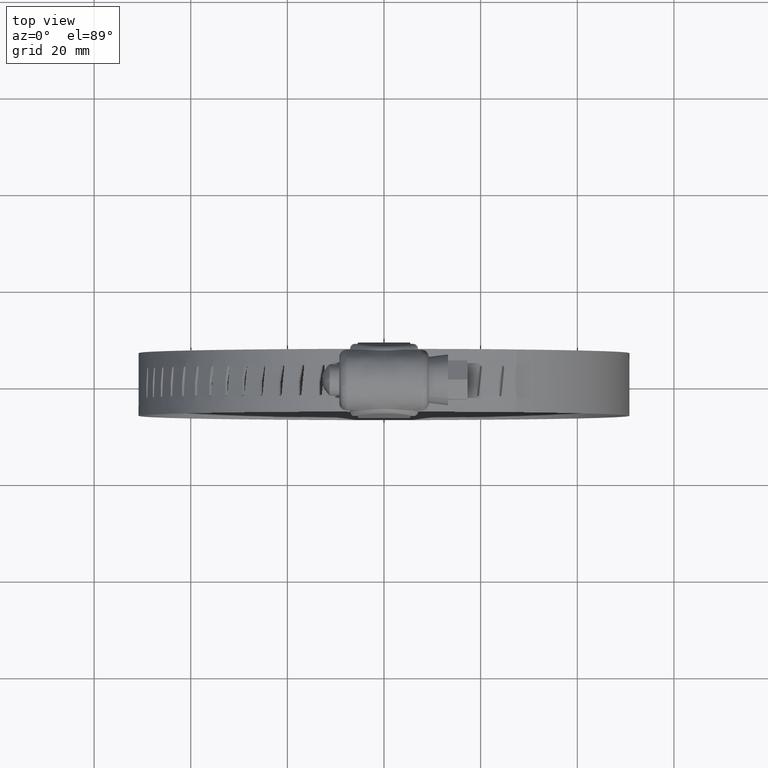
[diagram: clean part render]
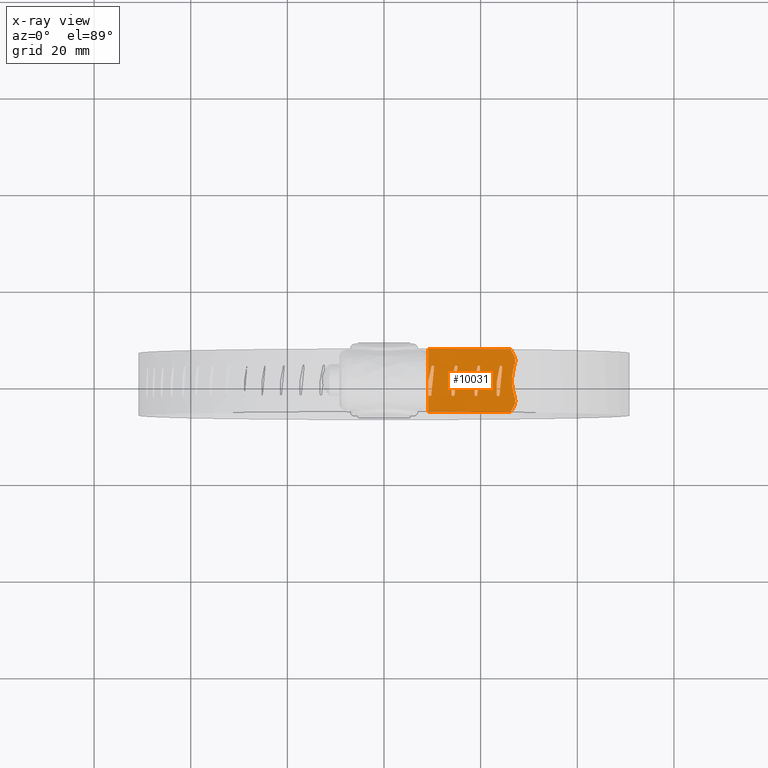
[diagram: x-ray — body ghosted, one internal face saturated and labeled with its STEP entity id]
A machine part, top view, then the same camera in x-ray: the body is ghosted and one INTERNAL B-rep face — a face not visible from any outside direction — is saturated and labeled: STEP entity #10031.
In plain terms, the highlighted face is a freeform B-spline surface patch.
Its self-contained STEP definition (entity closure, byte-faithful):
#8351=CARTESIAN_POINT('',(27.101650471723350,3.681800700683570,4.592234060521960));
#8352=VERTEX_POINT('',#8351);
#8358=CARTESIAN_POINT('',(26.906063021759799,5.226117512659190,4.689944447529220));
#8359=VERTEX_POINT('',#8358);
#8360=CARTESIAN_POINT('',(26.906063021759799,5.226117512659190,4.689944447529220));
#8361=CARTESIAN_POINT('',(27.021995742131448,5.011836430352624,4.631909496277211));
#8362=CARTESIAN_POINT('',(27.190433633565330,4.501733961130943,4.547624347147446));
#8363=CARTESIAN_POINT('',(27.167670906577911,3.955883228999682,4.559118120575854));
#8364=CARTESIAN_POINT('',(27.101650471723350,3.681800700683570,4.592234060521960));
#8365=B_SPLINE_CURVE_WITH_KNOTS('',3,(#8360,#8361,#8362,#8363,#8364),.UNSPECIFIED.,.F.,.U.,(4,1,4),(0.000000056296597,0.751276181587862,1.602694792512136),.UNSPECIFIED.);
#8366=EDGE_CURVE('',#8359,#8352,#8365,.T.);
#8403=CARTESIAN_POINT('',(26.906063021760051,-5.226117512658490,4.689944447529090));
#8404=VERTEX_POINT('',#8403);
#8410=CARTESIAN_POINT('',(27.101650471723499,-3.681800700682835,4.592234060521911));
#8411=VERTEX_POINT('',#8410);
#8412=CARTESIAN_POINT('',(27.101650471723499,-3.681800700682835,4.592234060521911));
#8413=CARTESIAN_POINT('',(27.167699407794512,-3.955885194933892,4.559208925948240));
#8414=CARTESIAN_POINT('',(27.190479838552520,-4.501729491435843,4.547802138133265));
#8415=CARTESIAN_POINT('',(27.022020524598521,-5.011828992731032,4.631989710062126));
#8416=CARTESIAN_POINT('',(26.906063021760051,-5.226117512658490,4.689944447529090));
#8417=B_SPLINE_CURVE_WITH_KNOTS('',3,(#8412,#8413,#8414,#8415,#8416),.UNSPECIFIED.,.F.,.U.,(4,1,4),(0.000000056260240,0.851411270212592,1.602680860971218),.UNSPECIFIED.);
#8418=EDGE_CURVE('',#8411,#8404,#8417,.T.);
#8454=CARTESIAN_POINT('',(26.712574706738650,-2.061301204482190,4.785672459038110));
#8455=VERTEX_POINT('',#8454);
#8461=CARTESIAN_POINT('',(26.712574706738600,2.061301204483115,4.785672459038150));
#8462=VERTEX_POINT('',#8461);
#8463=CARTESIAN_POINT('',(26.712574706738600,2.061301204483115,4.785672459038150));
#8464=CARTESIAN_POINT('',(26.555668433617811,1.411020043247488,4.862477899466092));
#8465=CARTESIAN_POINT('',(26.386313566310811,0.022471775716949,4.945376912446569));
#8466=CARTESIAN_POINT('',(26.545516489706230,-1.369086206580985,4.867447264347514));
#8467=CARTESIAN_POINT('',(26.712574706738650,-2.061301204482190,4.785672459038110));
#8468=B_SPLINE_CURVE_WITH_KNOTS('',3,(#8463,#8464,#8465,#8466,#8467),.UNSPECIFIED.,.F.,.U.,(4,1,4),(0.000000010733812,2.019969265582713,4.170229262031755),.UNSPECIFIED.);
#8469=EDGE_CURVE('',#8462,#8455,#8468,.T.);
#8484=CARTESIAN_POINT('',(9.206269885864650,-0.072243000000128,10.084415670138741));
#8485=VERTEX_POINT('',#8484);
#8500=CARTESIAN_POINT('',(9.176783059720750,-0.367213000000106,10.088271918570980));
#8501=VERTEX_POINT('',#8500);
#8507=CARTESIAN_POINT('',(9.206269885864650,-0.072243000000128,10.084415670138741));
#8508=CARTESIAN_POINT('',(9.176783059720750,-0.367213000000106,10.088271918570980));
#8509=QUASI_UNIFORM_CURVE('',1,(#8507,#8508),.UNSPECIFIED.,.F.,.U.);
#8510=EDGE_CURVE('',#8485,#8501,#8509,.T.);
#8520=CARTESIAN_POINT('',(9.779901879342411,2.773310999999865,10.006232187423141));
#8521=VERTEX_POINT('',#8520);
#8535=CARTESIAN_POINT('',(9.779901879342411,2.773310999999865,10.006232187423141));
#8536=CARTESIAN_POINT('',(9.206269885864650,-0.072243000000128,10.084415670138741));
#8537=QUASI_UNIFORM_CURVE('',1,(#8535,#8536),.UNSPECIFIED.,.F.,.U.);
#8538=EDGE_CURVE('',#8521,#8485,#8537,.T.);
#8561=CARTESIAN_POINT('',(10.381021097644521,2.773310999999865,9.917823409135901));
#8562=VERTEX_POINT('',#8561);
#8592=CARTESIAN_POINT('',(10.080624855939410,3.073310986949679,9.962834450419376));
#8593=VERTEX_POINT('',#8592);
#8594=CARTESIAN_POINT('',(10.080624855939410,3.073310986949679,9.962834450419376));
#8595=CARTESIAN_POINT('',(10.036709652591339,3.073361098476564,9.969293344227825));
#8596=CARTESIAN_POINT('',(9.939106671027210,3.051418682991618,9.983587388833261));
#8597=CARTESIAN_POINT('',(9.815914092076683,2.945331969422397,10.001412015468640));
#8598=CARTESIAN_POINT('',(9.780486168761890,2.832534753090935,10.006310223235280));
#8599=CARTESIAN_POINT('',(9.779901879342411,2.773310999999865,10.006232187423141));
#8600=B_SPLINE_CURVE_WITH_KNOTS('',3,(#8594,#8595,#8596,#8597,#8598,#8599),.UNSPECIFIED.,.F.,.U.,(4,1,1,4),(0.000000513687570,0.133180281469811,0.295921767765534,0.473511379996135),.UNSPECIFIED.);
#8601=EDGE_CURVE('',#8593,#8521,#8600,.T.);
#8603=CARTESIAN_POINT('',(10.381021097644521,2.773310999999865,9.917823409135901));
#8604=CARTESIAN_POINT('',(10.380529012120730,2.817682959370854,9.918018632034986));
#8605=CARTESIAN_POINT('',(10.357637154244070,2.916044203403652,9.921657753876026));
#8606=CARTESIAN_POINT('',(10.251189628657601,3.039094111502975,9.937654088386179));
#8607=CARTESIAN_POINT('',(10.139219986236030,3.073508602685603,9.954217182691739));
#8608=CARTESIAN_POINT('',(10.080624855939410,3.073310986949679,9.962834450419376));
#8609=B_SPLINE_CURVE_WITH_KNOTS('',3,(#8603,#8604,#8605,#8606,#8607,#8608),.UNSPECIFIED.,.F.,.U.,(4,1,1,4),(0.000000506866927,0.133155379152713,0.295866448802109,0.473422844281244),.UNSPECIFIED.);
#8610=EDGE_CURVE('',#8562,#8593,#8609,.T.);
#8620=CARTESIAN_POINT('',(9.779901879342079,-2.926689000000125,10.006232187422579));
#8621=VERTEX_POINT('',#8620);
#8635=CARTESIAN_POINT('',(9.779901879342079,-2.926689000000125,10.006232187422579));
#8636=CARTESIAN_POINT('',(10.381021097644521,2.773310999999865,9.917823409135901));
#8637=QUASI_UNIFORM_CURVE('',1,(#8635,#8636),.UNSPECIFIED.,.F.,.U.);
#8638=EDGE_CURVE('',#8621,#8562,#8637,.T.);
#8661=CARTESIAN_POINT('',(9.176783059720689,-2.926689000000125,10.088271918571239));
#8662=VERTEX_POINT('',#8661);
#8691=CARTESIAN_POINT('',(9.478498550864295,-3.226688984526933,10.048063199700341));
#8692=VERTEX_POINT('',#8691);
#8693=CARTESIAN_POINT('',(9.478498550864295,-3.226688984526933,10.048063199700341));
#8694=CARTESIAN_POINT('',(9.547054172919536,-3.227025125029273,10.038738774696530));
#8695=CARTESIAN_POINT('',(9.658976496681614,-3.186365406917556,10.023401611050490));
#8696=CARTESIAN_POINT('',(9.758475875607719,-3.059566196230893,10.009515319737840));
#8697=CARTESIAN_POINT('',(9.779347110763789,-2.971101336826104,10.006430861680579));
#8698=CARTESIAN_POINT('',(9.779901879342079,-2.926689000000125,10.006232187422579));
#8699=B_SPLINE_CURVE_WITH_KNOTS('',3,(#8693,#8694,#8695,#8696,#8697,#8698),.UNSPECIFIED.,.F.,.U.,(4,1,1,4),(0.000000525822244,0.207288957500838,0.340499169453135,0.473744511497274),.UNSPECIFIED.);
#8700=EDGE_CURVE('',#8692,#8621,#8699,.T.);
#8702=CARTESIAN_POINT('',(9.176783059720689,-2.926689000000125,10.088271918571239));
#8703=CARTESIAN_POINT('',(9.177266630922322,-2.961231789827622,10.088301971118170));
#8704=CARTESIAN_POINT('',(9.190972630654327,-3.035071754511354,10.086642456860339));
#8705=CARTESIAN_POINT('',(9.256012666027928,-3.142371543333490,10.078093031685100));
#8706=CARTESIAN_POINT('',(9.361108515636834,-3.212355528543324,10.063991471384419));
#8707=CARTESIAN_POINT('',(9.444275088002570,-3.226703557711063,10.052718503231940));
#8708=CARTESIAN_POINT('',(9.478498550864295,-3.226688984526933,10.048063199700341));
#8709=B_SPLINE_CURVE_WITH_KNOTS('',3,(#8702,#8703,#8704,#8705,#8706,#8707,#8708),.UNSPECIFIED.,.F.,.U.,(4,1,1,1,4),(0.000000491145290,0.103647017862877,0.222146785011251,0.370188705478791,0.473835199405190),.UNSPECIFIED.);
#8710=EDGE_CURVE('',#8662,#8692,#8709,.T.);
#8727=CARTESIAN_POINT('',(9.176783059720750,-0.367213000000106,10.088271918570980));
#8728=CARTESIAN_POINT('',(9.176783059720689,-2.926689000000125,10.088271918571239));
#8729=QUASI_UNIFORM_CURVE('',1,(#8727,#8728),.UNSPECIFIED.,.F.,.U.);
#8730=EDGE_CURVE('',#8501,#8662,#8729,.T.);
#8740=CARTESIAN_POINT('',(14.030726319292519,-0.072243000000128,9.236689379712781));
#8741=VERTEX_POINT('',#8740);
#8756=CARTESIAN_POINT('',(14.001687793620700,-0.367213000000106,9.243100900189539));
#8757=VERTEX_POINT('',#8756);
#8763=CARTESIAN_POINT('',(14.030726319292519,-0.072243000000128,9.236689379712781));
#8764=CARTESIAN_POINT('',(14.001687793620700,-0.367213000000106,9.243100900189539));
#8765=QUASI_UNIFORM_CURVE('',1,(#8763,#8764),.UNSPECIFIED.,.F.,.U.);
#8766=EDGE_CURVE('',#8741,#8757,#8765,.T.);
#8776=CARTESIAN_POINT('',(14.595361330343939,2.773310999999865,9.108808086297438));
#8777=VERTEX_POINT('',#8776);
#8791=CARTESIAN_POINT('',(14.595361330343939,2.773310999999865,9.108808086297438));
#8792=CARTESIAN_POINT('',(14.030726319292519,-0.072243000000128,9.236689379712781));
#8793=QUASI_UNIFORM_CURVE('',1,(#8791,#8792),.UNSPECIFIED.,.F.,.U.);
#8794=EDGE_CURVE('',#8777,#8741,#8793,.T.);
#8817=CARTESIAN_POINT('',(15.186487775800749,2.773310999999865,8.968344738152210));
#8818=VERTEX_POINT('',#8817);
#8847=CARTESIAN_POINT('',(14.891157603222400,3.073310986949679,9.039365756398837));
#8848=VERTEX_POINT('',#8847);
#8849=CARTESIAN_POINT('',(14.891157603222400,3.073310986949679,9.039365756398837));
#8850=CARTESIAN_POINT('',(14.833526236241170,3.073527166117949,9.053060701638257));
#8851=CARTESIAN_POINT('',(14.723350213299600,3.039130727545643,9.079143831934594));
#8852=CARTESIAN_POINT('',(14.618516663623421,2.916067767633483,9.103707850967275));
#8853=CARTESIAN_POINT('',(14.595886611406680,2.817693747504934,9.108808226320416));
#8854=CARTESIAN_POINT('',(14.595361330343939,2.773310999999865,9.108808086297438));
#8855=B_SPLINE_CURVE_WITH_KNOTS('',3,(#8849,#8850,#8851,#8852,#8853,#8854),.UNSPECIFIED.,.F.,.U.,(4,1,1,4),(0.000000513687195,0.177590120615601,0.340331606139079,0.473511379996323),.UNSPECIFIED.);
#8856=EDGE_CURVE('',#8848,#8777,#8855,.T.);
#8858=CARTESIAN_POINT('',(15.186487775800749,2.773310999999865,8.968344738152210));
#8859=CARTESIAN_POINT('',(15.186007397013000,2.832536540722316,8.968625631904290));
#8860=CARTESIAN_POINT('',(15.151211962314690,2.945274227093271,8.977211133085209));
#8861=CARTESIAN_POINT('',(15.030296764465509,3.051405655788178,9.006241821587738));
#8862=CARTESIAN_POINT('',(14.934328537103321,3.073342521975173,9.029107563494211));
#8863=CARTESIAN_POINT('',(14.891157603222400,3.073310986949679,9.039365756398837));
#8864=B_SPLINE_CURVE_WITH_KNOTS('',3,(#8858,#8859,#8860,#8861,#8862,#8863),.UNSPECIFIED.,.F.,.U.,(4,1,1,4),(0.000000506866710,0.177556907647622,0.340267978068836,0.473422844281150),.UNSPECIFIED.);
#8865=EDGE_CURVE('',#8818,#8848,#8864,.T.);
#8875=CARTESIAN_POINT('',(14.595361330344000,-2.926689000000125,9.108808086297881));
#8876=VERTEX_POINT('',#8875);
#8890=CARTESIAN_POINT('',(14.595361330344000,-2.926689000000125,9.108808086297881));
#8891=CARTESIAN_POINT('',(15.186487775800749,2.773310999999865,8.968344738152210));
#8892=QUASI_UNIFORM_CURVE('',1,(#8890,#8891),.UNSPECIFIED.,.F.,.U.);
#8893=EDGE_CURVE('',#8876,#8818,#8892,.T.);
#8916=CARTESIAN_POINT('',(14.001687793620480,-2.926689000000125,9.243100900189361));
#8917=VERTEX_POINT('',#8916);
#8946=CARTESIAN_POINT('',(14.298750745472040,-3.226688984526934,9.176748949904242));
#8947=VERTEX_POINT('',#8946);
#8948=CARTESIAN_POINT('',(14.298750745472040,-3.226688984526934,9.176748949904242));
#8949=CARTESIAN_POINT('',(14.342053412636680,-3.226720966708398,9.166953680238187));
#8950=CARTESIAN_POINT('',(14.443186108138860,-3.203731994558533,9.144011980061773));
#8951=CARTESIAN_POINT('',(14.562802827916951,-3.093964609328333,9.116644491197846));
#8952=CARTESIAN_POINT('',(14.594743341886319,-2.980969378852175,9.109100863061276));
#8953=CARTESIAN_POINT('',(14.595361330344000,-2.926689000000125,9.108808086297881));
#8954=B_SPLINE_CURVE_WITH_KNOTS('',3,(#8948,#8949,#8950,#8951,#8952,#8953),.UNSPECIFIED.,.F.,.U.,(4,1,1,4),(0.000000525822434,0.133245834177689,0.310887342909519,0.473744511497228),.UNSPECIFIED.);
#8955=EDGE_CURVE('',#8947,#8876,#8954,.T.);
#8957=CARTESIAN_POINT('',(14.001687793620480,-2.926689000000125,9.243100900189361));
#8958=CARTESIAN_POINT('',(14.002345868959081,-2.985963789641857,9.243119099230400));
#8959=CARTESIAN_POINT('',(14.037554901339099,-3.098740762104695,9.235472449329519));
#8960=CARTESIAN_POINT('',(14.159104945881049,-3.204834954691402,9.208276096216187));
#8961=CARTESIAN_POINT('',(14.255434533372069,-3.226738259944703,9.186547482631969));
#8962=CARTESIAN_POINT('',(14.298750745472040,-3.226688984526934,9.176748949904242));
#8963=B_SPLINE_CURVE_WITH_KNOTS('',3,(#8957,#8958,#8959,#8960,#8961,#8962),.UNSPECIFIED.,.F.,.U.,(4,1,1,4),(0.000000491145143,0.177711521890383,0.340564372445821,0.473835199405368),.UNSPECIFIED.);
#8964=EDGE_CURVE('',#8917,#8947,#8963,.T.);
#8981=CARTESIAN_POINT('',(14.001687793620700,-0.367213000000106,9.243100900189539));
#8982=CARTESIAN_POINT('',(14.001687793620480,-2.926689000000125,9.243100900189361));
#8983=QUASI_UNIFORM_CURVE('',1,(#8981,#8982),.UNSPECIFIED.,.F.,.U.);
#8984=EDGE_CURVE('',#8757,#8917,#8983,.T.);
#8994=CARTESIAN_POINT('',(18.762940024959050,-0.072243000000128,7.971709859948219));
#8995=VERTEX_POINT('',#8994);
#9010=CARTESIAN_POINT('',(18.734570800473652,-0.367213000000106,7.980627856926990));
#9011=VERTEX_POINT('',#9010);
#9017=CARTESIAN_POINT('',(18.762940024959050,-0.072243000000128,7.971709859948219));
#9018=CARTESIAN_POINT('',(18.734570800473652,-0.367213000000106,7.980627856926990));
#9019=QUASI_UNIFORM_CURVE('',1,(#9017,#9018),.UNSPECIFIED.,.F.,.U.);
#9020=EDGE_CURVE('',#8995,#9011,#9019,.T.);
#9030=CARTESIAN_POINT('',(19.314280840214352,2.773310999999865,7.795104009693300));
#9031=VERTEX_POINT('',#9030);
#9045=CARTESIAN_POINT('',(19.314280840214352,2.773310999999865,7.795104009693300));
#9046=CARTESIAN_POINT('',(18.762940024959050,-0.072243000000128,7.971709859948219));
#9047=QUASI_UNIFORM_CURVE('',1,(#9045,#9046),.UNSPECIFIED.,.F.,.U.);
#9048=EDGE_CURVE('',#9031,#8995,#9047,.T.);
#9071=CARTESIAN_POINT('',(19.890915683643751,2.773310999999865,7.603655102583210));
#9072=VERTEX_POINT('',#9071);
#9101=CARTESIAN_POINT('',(19.602899221130262,3.073310986949679,7.700145584960667));
#9102=VERTEX_POINT('',#9101);
#9103=CARTESIAN_POINT('',(19.602899221130262,3.073310986949679,7.700145584960667));
#9104=CARTESIAN_POINT('',(19.546689971907970,3.073496305609096,7.718808171227427));
#9105=CARTESIAN_POINT('',(19.439184478169519,3.039171603507037,7.754402037839661));
#9106=CARTESIAN_POINT('',(19.336909246657029,2.916049519841510,7.788003116571760));
#9107=CARTESIAN_POINT('',(19.314803155997762,2.817696569958849,7.795058700983730));
#9108=CARTESIAN_POINT('',(19.314280840214352,2.773310999999865,7.795104009693300));
#9109=B_SPLINE_CURVE_WITH_KNOTS('',3,(#9103,#9104,#9105,#9106,#9107,#9108),.UNSPECIFIED.,.F.,.U.,(4,1,1,4),(0.000000513687415,0.177590120615564,0.340331606138796,0.473511379995833),.UNSPECIFIED.);
#9110=EDGE_CURVE('',#9102,#9031,#9109,.T.);
#9112=CARTESIAN_POINT('',(19.890915683643751,2.773310999999865,7.603655102583210));
#9113=CARTESIAN_POINT('',(19.890471682912690,2.832544811919626,7.603973476217555));
#9114=CARTESIAN_POINT('',(19.860920910867151,2.930498919719429,7.614067371462043));
#9115=CARTESIAN_POINT('',(19.752424264007900,3.043538510225358,7.650415702284014));
#9116=CARTESIAN_POINT('',(19.659112786631979,3.073501331335603,7.681482614343499));
#9117=CARTESIAN_POINT('',(19.602899221130262,3.073310986949679,7.700145584960667));
#9118=B_SPLINE_CURVE_WITH_KNOTS('',3,(#9112,#9113,#9114,#9115,#9116,#9117),.UNSPECIFIED.,.F.,.U.,(4,1,1,4),(0.000000506867461,0.177556907648156,0.295866448802449,0.473422844281623),.UNSPECIFIED.);
#9119=EDGE_CURVE('',#9072,#9102,#9118,.T.);
#9129=CARTESIAN_POINT('',(19.314280840214249,-2.926689000000125,7.795104009693300));
#9130=VERTEX_POINT('',#9129);
#9144=CARTESIAN_POINT('',(19.314280840214249,-2.926689000000125,7.795104009693300));
#9145=CARTESIAN_POINT('',(19.890915683643751,2.773310999999865,7.603655102583210));
#9146=QUASI_UNIFORM_CURVE('',1,(#9144,#9145),.UNSPECIFIED.,.F.,.U.);
#9147=EDGE_CURVE('',#9130,#9072,#9146,.T.);
#9170=CARTESIAN_POINT('',(18.734570800473549,-2.926689000000125,7.980627856927139));
#9171=VERTEX_POINT('',#9170);
#9201=CARTESIAN_POINT('',(19.024720384597689,-3.226688984526933,7.888637653633535));
#9202=VERTEX_POINT('',#9201);
#9203=CARTESIAN_POINT('',(19.024720384597689,-3.226688984526933,7.888637653633535));
#9204=CARTESIAN_POINT('',(19.067012838267871,-3.226725566358192,7.875102945167573));
#9205=CARTESIAN_POINT('',(19.161002046722619,-3.204795951956035,7.844960372404327));
#9206=CARTESIAN_POINT('',(19.279547263586402,-3.098717342925570,7.806716285725711));
#9207=CARTESIAN_POINT('',(19.313700230072861,-2.985946200563149,7.795460854786866));
#9208=CARTESIAN_POINT('',(19.314280840214249,-2.926689000000125,7.795104009693300));
#9209=B_SPLINE_CURVE_WITH_KNOTS('',3,(#9203,#9204,#9205,#9206,#9207,#9208),.UNSPECIFIED.,.F.,.U.,(4,1,1,4),(0.000000525822388,0.133245834177540,0.296067515128863,0.473744511497156),.UNSPECIFIED.);
#9210=EDGE_CURVE('',#9202,#9130,#9209,.T.);
#9212=CARTESIAN_POINT('',(18.734570800473549,-2.926689000000125,7.980627856927139));
#9213=CARTESIAN_POINT('',(18.735224965059061,-2.981004276138467,7.980575274878513));
#9214=CARTESIAN_POINT('',(18.763947091202670,-3.084079366826122,7.971680884426561));
#9215=CARTESIAN_POINT('',(18.874380607549028,-3.198277200414990,7.936668637388361));
#9216=CARTESIAN_POINT('',(18.972990623457640,-3.226825393010999,7.905193036542217));
#9217=CARTESIAN_POINT('',(19.024720384597689,-3.226688984526933,7.888637653633535));
#9218=B_SPLINE_CURVE_WITH_KNOTS('',3,(#9212,#9213,#9214,#9215,#9216,#9217),.UNSPECIFIED.,.F.,.U.,(4,1,1,4),(0.000000491145163,0.162888850518577,0.310946876457193,0.473835199405401),.UNSPECIFIED.);
#9219=EDGE_CURVE('',#9171,#9202,#9218,.T.);
#9236=CARTESIAN_POINT('',(18.734570800473652,-0.367213000000106,7.980627856926990));
#9237=CARTESIAN_POINT('',(18.734570800473549,-2.926689000000125,7.980627856927139));
#9238=QUASI_UNIFORM_CURVE('',1,(#9236,#9237),.UNSPECIFIED.,.F.,.U.);
#9239=EDGE_CURVE('',#9011,#9171,#9238,.T.);
#9249=CARTESIAN_POINT('',(26.215040247798299,-6.499999999999840,5.027599416484560));
#9250=VERTEX_POINT('',#9249);
#9251=CARTESIAN_POINT('',(26.215040247798299,-6.499999999999840,5.027599416484560));
#9252=CARTESIAN_POINT('',(26.906063021760051,-5.226117512658490,4.689944447529090));
#9253=QUASI_UNIFORM_CURVE('',1,(#9251,#9252),.UNSPECIFIED.,.F.,.U.);
#9254=EDGE_CURVE('',#9250,#8404,#9253,.T.);
#9285=CARTESIAN_POINT('',(26.215040247798299,6.500000000000170,5.027599416484560));
#9286=VERTEX_POINT('',#9285);
#9287=CARTESIAN_POINT('',(26.906063021759799,5.226117512659190,4.689944447529220));
#9288=CARTESIAN_POINT('',(26.215040247798299,6.500000000000170,5.027599416484560));
#9289=QUASI_UNIFORM_CURVE('',1,(#9287,#9288),.UNSPECIFIED.,.F.,.U.);
#9290=EDGE_CURVE('',#8359,#9286,#9289,.T.);
#9311=CARTESIAN_POINT('',(27.101650471723499,-3.681800700682835,4.592234060521911));
#9312=CARTESIAN_POINT('',(26.712574706738650,-2.061301204482190,4.785672459038110));
#9313=QUASI_UNIFORM_CURVE('',1,(#9311,#9312),.UNSPECIFIED.,.F.,.U.);
#9314=EDGE_CURVE('',#8411,#8455,#9313,.T.);
#9325=CARTESIAN_POINT('',(26.712574706738600,2.061301204483115,4.785672459038150));
#9326=CARTESIAN_POINT('',(27.101650471723350,3.681800700683570,4.592234060521960));
#9327=QUASI_UNIFORM_CURVE('',1,(#9325,#9326),.UNSPECIFIED.,.F.,.U.);
#9328=EDGE_CURVE('',#8462,#8352,#9327,.T.);
#9345=CARTESIAN_POINT('',(23.366895999175401,-0.072243000000128,6.299104368806210));
#9346=VERTEX_POINT('',#9345);
#9361=CARTESIAN_POINT('',(23.339411982804648,-0.367213000000106,6.310460970945230));
#9362=VERTEX_POINT('',#9361);
#9368=CARTESIAN_POINT('',(23.366895999175401,-0.072243000000128,6.299104368806210));
#9369=CARTESIAN_POINT('',(23.339411982804648,-0.367213000000106,6.310460970945230));
#9370=QUASI_UNIFORM_CURVE('',1,(#9368,#9369),.UNSPECIFIED.,.F.,.U.);
#9371=EDGE_CURVE('',#9346,#9362,#9370,.T.);
#9381=CARTESIAN_POINT('',(23.900746582121950,2.773310999999865,6.075118038869620));
#9382=VERTEX_POINT('',#9381);
#9396=CARTESIAN_POINT('',(23.900746582121950,2.773310999999865,6.075118038869620));
#9397=CARTESIAN_POINT('',(23.366895999175401,-0.072243000000128,6.299104368806210));
#9398=QUASI_UNIFORM_CURVE('',1,(#9396,#9397),.UNSPECIFIED.,.F.,.U.);
#9399=EDGE_CURVE('',#9382,#9346,#9398,.T.);
#9422=CARTESIAN_POINT('',(24.458501284183850,2.773310999999865,5.834140614577770));
#9423=VERTEX_POINT('',#9422);
#9453=CARTESIAN_POINT('',(24.179990510924469,3.073310986949680,5.955366210252466));
#9454=VERTEX_POINT('',#9453);
#9455=CARTESIAN_POINT('',(24.179990510924469,3.073310986949680,5.955366210252466));
#9456=CARTESIAN_POINT('',(24.125589625877421,3.073543763653407,5.978870740584029));
#9457=CARTESIAN_POINT('',(24.048856415131009,3.048042056665981,6.011947135854893));
#9458=CARTESIAN_POINT('',(23.961975596431468,2.967420954025994,6.049243322164200));
#9459=CARTESIAN_POINT('',(23.913798438627669,2.881657726049301,6.069802295623286));
#9460=CARTESIAN_POINT('',(23.901164919606629,2.807829312430604,6.075040295728579));
#9461=CARTESIAN_POINT('',(23.900746582121950,2.773310999999865,6.075118038869620));
#9462=B_SPLINE_CURVE_WITH_KNOTS('',3,(#9455,#9456,#9457,#9458,#9459,#9460,#9461),.UNSPECIFIED.,.F.,.U.,(4,1,1,1,4),(0.000000513687409,0.177590120615628,0.251516838189195,0.369935714705619,0.473511379995822),.UNSPECIFIED.);
#9463=EDGE_CURVE('',#9454,#9382,#9462,.T.);
#9465=CARTESIAN_POINT('',(24.458501284183850,2.773310999999865,5.834140614577770));
#9466=CARTESIAN_POINT('',(24.458091527085500,2.817694698123852,5.834450086286077));
#9467=CARTESIAN_POINT('',(24.438953826675789,2.906134758017734,5.842982415258864));
#9468=CARTESIAN_POINT('',(24.347045388579929,3.032954608088669,5.883069822824331));
#9469=CARTESIAN_POINT('',(24.243460078322681,3.073644457674944,5.927945213553988));
#9470=CARTESIAN_POINT('',(24.179990510924469,3.073310986949680,5.955366210252466));
#9471=B_SPLINE_CURVE_WITH_KNOTS('',3,(#9465,#9466,#9467,#9468,#9469,#9470),.UNSPECIFIED.,.F.,.U.,(4,1,1,4),(0.000000506867112,0.133155379152991,0.266275071986920,0.473422844281629),.UNSPECIFIED.);
#9472=EDGE_CURVE('',#9423,#9454,#9471,.T.);
#9482=CARTESIAN_POINT('',(23.900746582121851,-2.926689000000125,6.075118038869730));
#9483=VERTEX_POINT('',#9482);
#9497=CARTESIAN_POINT('',(23.900746582121851,-2.926689000000125,6.075118038869730));
#9498=CARTESIAN_POINT('',(24.458501284183850,2.773310999999865,5.834140614577770));
#9499=QUASI_UNIFORM_CURVE('',1,(#9497,#9498),.UNSPECIFIED.,.F.,.U.);
#9500=EDGE_CURVE('',#9483,#9423,#9499,.T.);
#9523=CARTESIAN_POINT('',(23.339411982804648,-2.926689000000125,6.310460970945290));
#9524=VERTEX_POINT('',#9523);
#9554=CARTESIAN_POINT('',(23.620439985668920,-3.226688984526933,6.193532615635757));
#9555=VERTEX_POINT('',#9554);
#9556=CARTESIAN_POINT('',(23.620439985668920,-3.226688984526933,6.193532615635757));
#9557=CARTESIAN_POINT('',(23.670504181121899,-3.226793418665710,6.172543190295583));
#9558=CARTESIAN_POINT('',(23.775093669699341,-3.195584670678576,6.128600347128677));
#9559=CARTESIAN_POINT('',(23.877798564204159,-3.074446149773723,6.085179572646796));
#9560=CARTESIAN_POINT('',(23.900236456173200,-2.971080818979552,6.075464234045789));
#9561=CARTESIAN_POINT('',(23.900746582121851,-2.926689000000125,6.075118038869730));
#9562=B_SPLINE_CURVE_WITH_KNOTS('',3,(#9556,#9557,#9558,#9559,#9560,#9561),.UNSPECIFIED.,.F.,.U.,(4,1,1,4),(0.000000525822317,0.162857658000197,0.340499169453093,0.473744511497322),.UNSPECIFIED.);
#9563=EDGE_CURVE('',#9555,#9483,#9562,.T.);
#9565=CARTESIAN_POINT('',(23.339411982804648,-2.926689000000125,6.310460970945290));
#9566=CARTESIAN_POINT('',(23.340085527171510,-2.985957213998480,6.310355248216322));
#9567=CARTESIAN_POINT('',(23.373379499281022,-3.098752036568302,6.296732776292473));
#9568=CARTESIAN_POINT('',(23.488406244692669,-3.204826197154410,6.248823342772315));
#9569=CARTESIAN_POINT('',(23.579479518211208,-3.226742447377509,6.210705683351754));
#9570=CARTESIAN_POINT('',(23.620439985668920,-3.226688984526933,6.193532615635757));
#9571=B_SPLINE_CURVE_WITH_KNOTS('',3,(#9565,#9566,#9567,#9568,#9569,#9570),.UNSPECIFIED.,.F.,.U.,(4,1,1,4),(0.000000491144970,0.177711521890272,0.340564372445697,0.473835199405189),.UNSPECIFIED.);
#9572=EDGE_CURVE('',#9524,#9555,#9571,.T.);
#9589=CARTESIAN_POINT('',(23.339411982804648,-0.367213000000106,6.310460970945230));
#9590=CARTESIAN_POINT('',(23.339411982804648,-2.926689000000125,6.310460970945290));
#9591=QUASI_UNIFORM_CURVE('',1,(#9589,#9590),.UNSPECIFIED.,.F.,.U.);
#9592=EDGE_CURVE('',#9362,#9524,#9591,.T.);
#9779=CARTESIAN_POINT('',(9.125830612688770,-6.499999999999840,10.094897980848440));
#9780=VERTEX_POINT('',#9779);
#9789=CARTESIAN_POINT('',(9.125830612688770,6.500000000000170,10.094897980848440));
#9790=VERTEX_POINT('',#9789);
#9798=CARTESIAN_POINT('',(9.125830612688770,6.500000000000170,10.094897980848440));
#9799=CARTESIAN_POINT('',(9.125830612688770,-6.499999999999840,10.094897980848440));
#9800=QUASI_UNIFORM_CURVE('',1,(#9798,#9799),.UNSPECIFIED.,.F.,.U.);
#9801=EDGE_CURVE('',#9790,#9780,#9800,.T.);
#9824=CARTESIAN_POINT('',(26.215040247798299,-6.499999999999840,5.027599416484560));
#9825=CARTESIAN_POINT('',(23.609727226022201,-6.499999999999827,6.278780720958547));
#9826=CARTESIAN_POINT('',(18.031012717056331,-6.499999999999893,8.445141757391371));
#9827=CARTESIAN_POINT('',(12.176988643211910,-6.499999999999809,9.699773482395397));
#9828=CARTESIAN_POINT('',(9.125830612688770,-6.499999999999840,10.094897980848440));
#9829=B_SPLINE_CURVE_WITH_KNOTS('',3,(#9824,#9825,#9826,#9827,#9828),.UNSPECIFIED.,.F.,.U.,(4,1,4),(1.514653E-009,8.670505685911282,17.900388757750569),.UNSPECIFIED.);
#9830=EDGE_CURVE('',#9250,#9780,#9829,.T.);
#9877=CARTESIAN_POINT('',(26.215040247798299,6.500000000000170,5.027599416484560));
#9878=CARTESIAN_POINT('',(23.609727226022208,6.500000000000157,6.278780720958549));
#9879=CARTESIAN_POINT('',(18.031012717056331,6.500000000000215,8.445141757391372));
#9880=CARTESIAN_POINT('',(12.176988643211910,6.500000000000148,9.699773482395401));
#9881=CARTESIAN_POINT('',(9.125830612688770,6.500000000000170,10.094897980848440));
#9882=B_SPLINE_CURVE_WITH_KNOTS('',3,(#9877,#9878,#9879,#9880,#9881),.UNSPECIFIED.,.F.,.U.,(4,1,4),(1.514653E-009,8.670505685911282,17.900388757750569),.UNSPECIFIED.);
#9883=EDGE_CURVE('',#9286,#9790,#9882,.T.);
#9965=CARTESIAN_POINT('',(27.999172685421488,-6.824999999999840,4.131528440180659));
#9966=CARTESIAN_POINT('',(27.999172685421488,6.833125000000173,4.131528440180659));
#9967=CARTESIAN_POINT('',(18.665181022231774,-6.824999999999840,9.029187978957058));
#9968=CARTESIAN_POINT('',(18.665181022231774,6.833125000000172,9.029187978957058));
#9969=CARTESIAN_POINT('',(8.190423115163400,-6.824999999999840,10.208135015329283));
#9970=CARTESIAN_POINT('',(8.190423115163400,6.833125000000172,10.208135015329283));
#9978=(BOUNDED_SURFACE()B_SPLINE_SURFACE(1,2,((#9965,#9967,#9969),(#9966,#9968,#9970)),.UNSPECIFIED.,.F.,.F.,.U.)B_SPLINE_SURFACE_WITH_KNOTS((2,2),(3,3),(0.0,13.658125000000011),(0.0,20.899245111817400),.UNSPECIFIED.)GEOMETRIC_REPRESENTATION_ITEM()RATIONAL_B_SPLINE_SURFACE(((0.997359170883761,0.979603695917881,0.996073730073914),(0.997359170883761,0.979603695917881,0.996073730073914)))REPRESENTATION_ITEM('')SURFACE());
#9979=ORIENTED_EDGE('',*,*,#9314,.F.);
#9980=ORIENTED_EDGE('',*,*,#8418,.T.);
#9981=ORIENTED_EDGE('',*,*,#9254,.F.);
#9982=ORIENTED_EDGE('',*,*,#9830,.T.);
#9983=ORIENTED_EDGE('',*,*,#9801,.F.);
#9984=ORIENTED_EDGE('',*,*,#9883,.F.);
#9985=ORIENTED_EDGE('',*,*,#9290,.F.);
#9986=ORIENTED_EDGE('',*,*,#8366,.T.);
#9987=ORIENTED_EDGE('',*,*,#9328,.F.);
#9988=ORIENTED_EDGE('',*,*,#8469,.T.);
#9989=EDGE_LOOP('',(#9979,#9980,#9981,#9982,#9983,#9984,#9985,#9986,#9987,#9988));
#9990=FACE_OUTER_BOUND('',#9989,.T.);
#9991=ORIENTED_EDGE('',*,*,#8766,.T.);
#9992=ORIENTED_EDGE('',*,*,#8984,.T.);
#9993=ORIENTED_EDGE('',*,*,#8964,.T.);
#9994=ORIENTED_EDGE('',*,*,#8955,.T.);
#9995=ORIENTED_EDGE('',*,*,#8893,.T.);
#9996=ORIENTED_EDGE('',*,*,#8865,.T.);
#9997=ORIENTED_EDGE('',*,*,#8856,.T.);
#9998=ORIENTED_EDGE('',*,*,#8794,.T.);
#9999=EDGE_LOOP('',(#9991,#9992,#9993,#9994,#9995,#9996,#9997,#9998));
#10000=FACE_BOUND('',#9999,.T.);
#10001=ORIENTED_EDGE('',*,*,#9020,.T.);
#10002=ORIENTED_EDGE('',*,*,#9239,.T.);
#10003=ORIENTED_EDGE('',*,*,#9219,.T.);
#10004=ORIENTED_EDGE('',*,*,#9210,.T.);
#10005=ORIENTED_EDGE('',*,*,#9147,.T.);
#10006=ORIENTED_EDGE('',*,*,#9119,.T.);
#10007=ORIENTED_EDGE('',*,*,#9110,.T.);
#10008=ORIENTED_EDGE('',*,*,#9048,.T.);
#10009=EDGE_LOOP('',(#10001,#10002,#10003,#10004,#10005,#10006,#10007,#10008));
#10010=FACE_BOUND('',#10009,.T.);
#10011=ORIENTED_EDGE('',*,*,#9371,.T.);
#10012=ORIENTED_EDGE('',*,*,#9592,.T.);
#10013=ORIENTED_EDGE('',*,*,#9572,.T.);
#10014=ORIENTED_EDGE('',*,*,#9563,.T.);
#10015=ORIENTED_EDGE('',*,*,#9500,.T.);
#10016=ORIENTED_EDGE('',*,*,#9472,.T.);
#10017=ORIENTED_EDGE('',*,*,#9463,.T.);
#10018=ORIENTED_EDGE('',*,*,#9399,.T.);
#10019=EDGE_LOOP('',(#10011,#10012,#10013,#10014,#10015,#10016,#10017,#10018));
#10020=FACE_BOUND('',#10019,.T.);
#10021=ORIENTED_EDGE('',*,*,#8510,.T.);
#10022=ORIENTED_EDGE('',*,*,#8730,.T.);
#10023=ORIENTED_EDGE('',*,*,#8710,.T.);
#10024=ORIENTED_EDGE('',*,*,#8700,.T.);
#10025=ORIENTED_EDGE('',*,*,#8638,.T.);
#10026=ORIENTED_EDGE('',*,*,#8610,.T.);
#10027=ORIENTED_EDGE('',*,*,#8601,.T.);
#10028=ORIENTED_EDGE('',*,*,#8538,.T.);
#10029=EDGE_LOOP('',(#10021,#10022,#10023,#10024,#10025,#10026,#10027,#10028));
#10030=FACE_BOUND('',#10029,.T.);
#10031=ADVANCED_FACE('',(#9990,#10000,#10010,#10020,#10030),#9978,.F.);